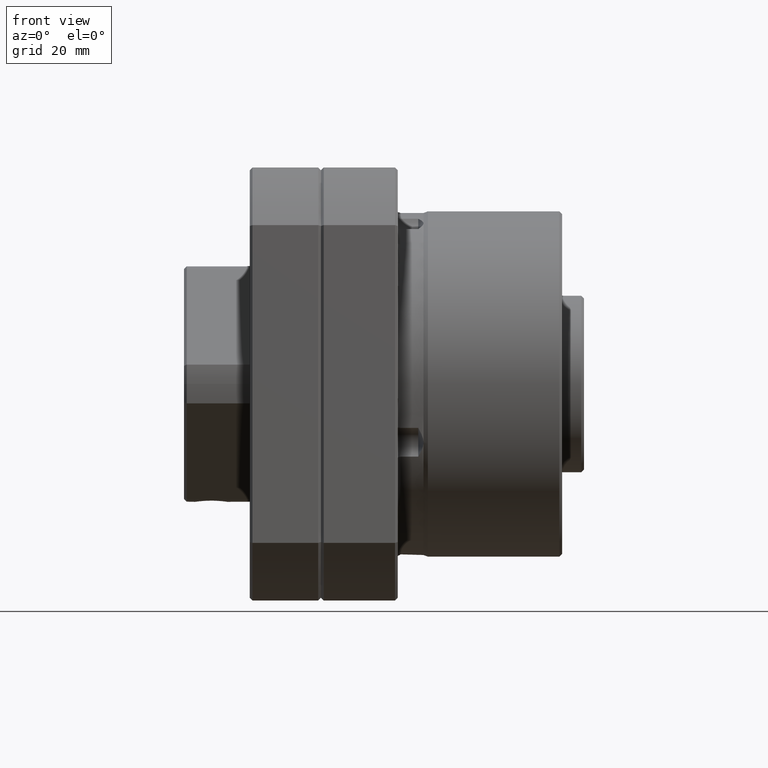
[diagram: clean part render]
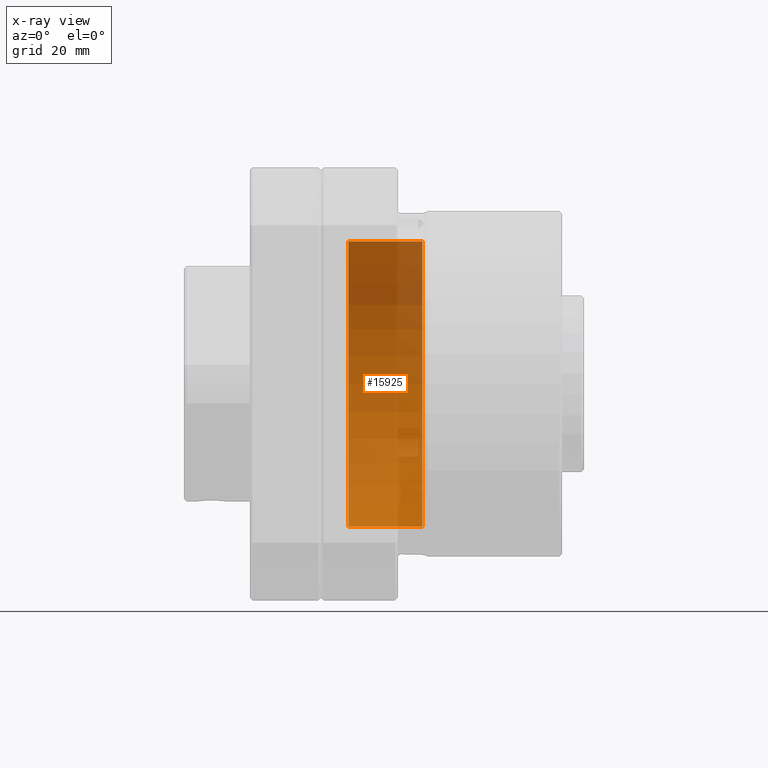
[diagram: x-ray — body ghosted, one internal face saturated and labeled with its STEP entity id]
A machine part, front view, then the same camera in x-ray: the body is ghosted and one INTERNAL B-rep face — a face not visible from any outside direction — is saturated and labeled: STEP entity #15925.
In plain terms, the highlighted cylindrical surface (partial cylindrical patch) has radius 26 mm, axis along (-1, 0, -0).
Its self-contained STEP definition (entity closure, byte-faithful):
#10089 = CARTESIAN_POINT ( 'NONE',  ( 18.50000000000001100, -9.805632868176150700E-015, -26.00000000000001100 ) ) ;
#12056 = CARTESIAN_POINT ( 'NONE',  ( 18.50000000000001100, 1.298960938811433000E-014, 26.00000000000001100 ) ) ;
#12057 = DIRECTION ( 'NONE',  ( 0.0000000000000000000, 4.996003610813202500E-016, 1.000000000000000000 ) ) ;
#12058 = DIRECTION ( 'NONE',  ( -1.000000000000000000, 1.368455531567204200E-048, -1.368455531567204200E-048 ) ) ;
#12059 = CARTESIAN_POINT ( 'NONE',  ( 18.50000000000001100, -1.455727562933104600E-030, -3.223671376975089600E-031 ) ) ;
#12060 = AXIS2_PLACEMENT_3D ( 'NONE', #12059, #12058, #12057 ) ;
#12061 = DIRECTION ( 'NONE',  ( 0.0000000000000000000, 4.996003610813202500E-016, 1.000000000000000000 ) ) ;
#12062 = DIRECTION ( 'NONE',  ( -1.000000000000000000, 1.368455531567204200E-048, -1.368455531567204200E-048 ) ) ;
#12063 = CARTESIAN_POINT ( 'NONE',  ( -56.86252019386107300, -1.455727562933103500E-030, -3.223671376975103600E-031 ) ) ;
#12064 = AXIS2_PLACEMENT_3D ( 'NONE', #12063, #12062, #12061 ) ;
#12065 = CIRCLE ( 'NONE', #12060, 26.00000000000001100 ) ;
#12066 = CYLINDRICAL_SURFACE ( 'NONE', #12064, 26.00000000000000700 ) ;
#12067 = FACE_OUTER_BOUND ( 'NONE', #15926, .T. ) ;
#12187 = DIRECTION ( 'NONE',  ( -1.000000000000000000, 1.368455531567204200E-048, -1.368455531567204200E-048 ) ) ;
#12188 = VECTOR ( 'NONE', #12187, 1000.000000000000000 ) ;
#12189 = CARTESIAN_POINT ( 'NONE',  ( -56.86252019386107300, 1.298960938811432800E-014, 26.00000000000000700 ) ) ;
#12190 = LINE ( 'NONE', #12189, #12188 ) ;
#12191 = CARTESIAN_POINT ( 'NONE',  ( 5.000000000000004400, 1.298960938811432800E-014, 26.00000000000001100 ) ) ;
#12192 = DIRECTION ( 'NONE',  ( 0.0000000000000000000, 4.996003610813202500E-016, 1.000000000000000000 ) ) ;
#12193 = DIRECTION ( 'NONE',  ( -1.000000000000000000, 1.368455531567204200E-048, -1.368455531567204200E-048 ) ) ;
#12194 = CARTESIAN_POINT ( 'NONE',  ( 5.000000000000004400, -1.455727562933104700E-030, -3.223671376975089600E-031 ) ) ;
#12195 = AXIS2_PLACEMENT_3D ( 'NONE', #12194, #12193, #12192 ) ;
#12196 = CIRCLE ( 'NONE', #12195, 26.00000000000000700 ) ;
#12197 = CARTESIAN_POINT ( 'NONE',  ( 5.000000000000004400, -9.805632868176147500E-015, -26.00000000000001100 ) ) ;
#12198 = DIRECTION ( 'NONE',  ( -1.000000000000000000, 1.368455531567204200E-048, -1.368455531567204200E-048 ) ) ;
#12199 = VECTOR ( 'NONE', #12198, 1000.000000000000000 ) ;
#12200 = CARTESIAN_POINT ( 'NONE',  ( -56.86252019386107300, -9.805632868176149100E-015, -26.00000000000000700 ) ) ;
#12201 = LINE ( 'NONE', #12200, #12199 ) ;
#15144 = VERTEX_POINT ( 'NONE', #10089 ) ;
#15925 = ADVANCED_FACE ( 'NONE', ( #12067 ), #12066, .T. ) ;
#15926 = EDGE_LOOP ( 'NONE', ( #15927, #15983, #15986, #15989 ) ) ;
#15927 = ORIENTED_EDGE ( 'NONE', *, *, #15928, .T. ) ;
#15928 = EDGE_CURVE ( 'NONE', #15929, #15144, #12065, .T. ) ;
#15929 = VERTEX_POINT ( 'NONE', #12056 ) ;
#15983 = ORIENTED_EDGE ( 'NONE', *, *, #15984, .T. ) ;
#15984 = EDGE_CURVE ( 'NONE', #15144, #15985, #12201, .T. ) ;
#15985 = VERTEX_POINT ( 'NONE', #12197 ) ;
#15986 = ORIENTED_EDGE ( 'NONE', *, *, #15987, .F. ) ;
#15987 = EDGE_CURVE ( 'NONE', #15988, #15985, #12196, .T. ) ;
#15988 = VERTEX_POINT ( 'NONE', #12191 ) ;
#15989 = ORIENTED_EDGE ( 'NONE', *, *, #15990, .F. ) ;
#15990 = EDGE_CURVE ( 'NONE', #15929, #15988, #12190, .T. ) ;